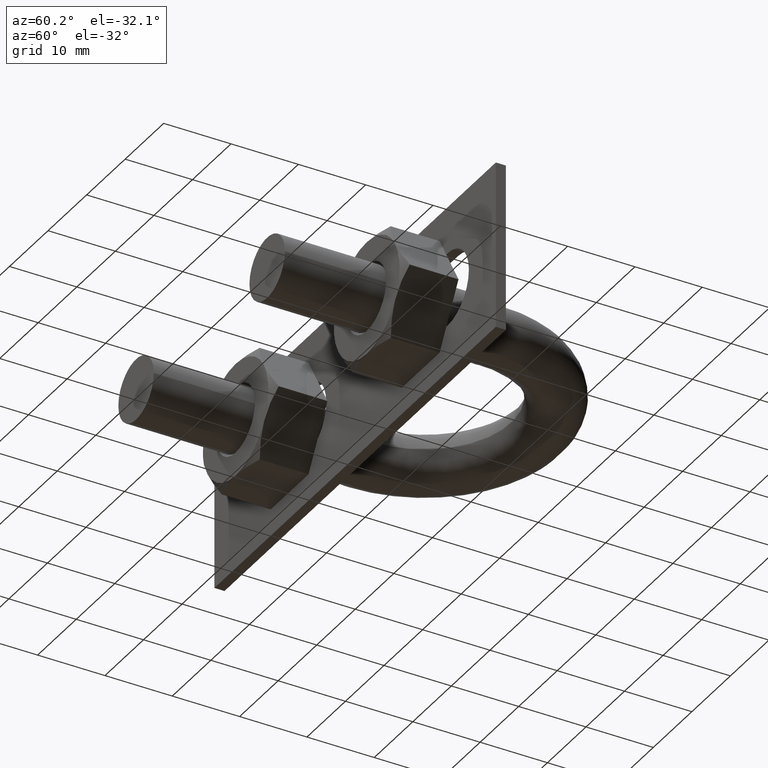
[diagram: clean part render]
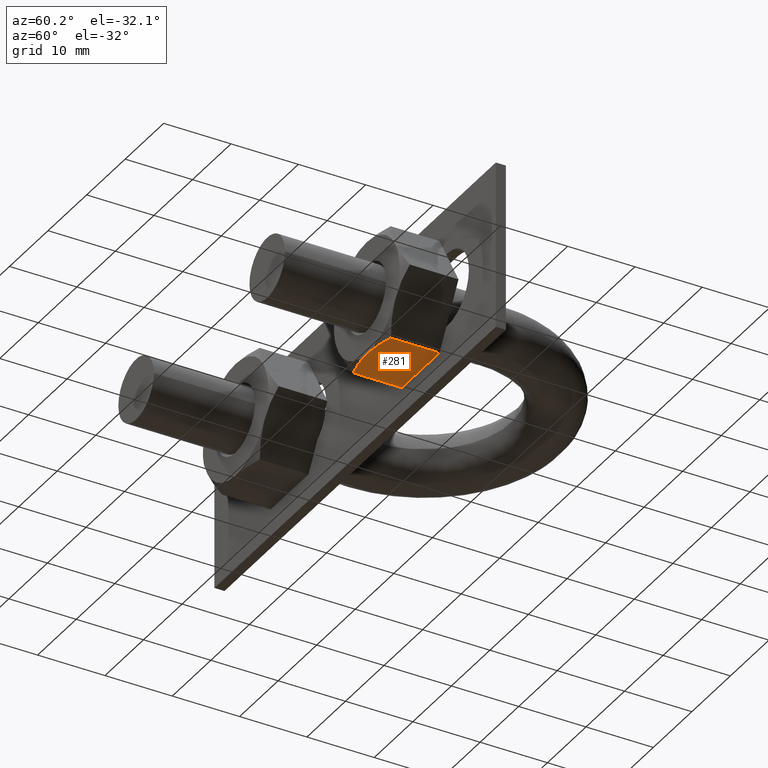
[diagram: same view with one face highlighted and labeled with its STEP entity id]
A machine part, auxiliary view. The second image highlights one B-rep face of the part: STEP entity #281.
In plain terms, the highlighted planar face has unit normal (-0, 0, 1).
Its self-contained STEP definition (entity closure, byte-faithful):
#281 = ADVANCED_FACE( '', ( #431 ), #432, .F. );
#431 = FACE_OUTER_BOUND( '', #751, .T. );
#432 = PLANE( '', #752 );
#751 = EDGE_LOOP( '', ( #1239, #1240, #1241, #1242, #1243 ) );
#752 = AXIS2_PLACEMENT_3D( '', #1244, #1245, #1246 );
#1239 = ORIENTED_EDGE( '', *, *, #1448, .F. );
#1240 = ORIENTED_EDGE( '', *, *, #1449, .F. );
#1241 = ORIENTED_EDGE( '', *, *, #1447, .F. );
#1242 = ORIENTED_EDGE( '', *, *, #1427, .F. );
#1243 = ORIENTED_EDGE( '', *, *, #1450, .F. );
#1244 = CARTESIAN_POINT( '', ( 21.9074772881109, -7.20000000000000, -8.50000000000000 ) );
#1245 = DIRECTION( '', ( -3.74915180455534E-033, 2.29561756065155E-049, 1.00000000000000 ) );
#1246 = DIRECTION( '', ( 6.12303176911189E-017, 1.00000000000000, 0.000000000000000 ) );
#1427 = EDGE_CURVE( '', #1675, #1677, #1678, .T. );
#1447 = EDGE_CURVE( '', #1677, #1705, #1707, .F. );
#1448 = EDGE_CURVE( '', #1645, #1708, #1709, .T. );
#1449 = EDGE_CURVE( '', #1705, #1645, #1710, .T. );
#1450 = EDGE_CURVE( '', #1708, #1675, #1711, .T. );
#1645 = VERTEX_POINT( '', #2057 );
#1675 = VERTEX_POINT( '', #2104 );
#1677 = VERTEX_POINT( '', #2106 );
#1678 = LINE( '', #2107, #2108 );
#1705 = VERTEX_POINT( '', #2173 );
#1707 = LINE( '', #2175, #2176 );
#1708 = VERTEX_POINT( '', #2177 );
#1709 = B_SPLINE_CURVE_WITH_KNOTS( '', 3, ( #2178, #2179, #2180, #2181, #2182, #2183 ), .UNSPECIFIED., .F., .F., ( 4, 2, 4 ), ( 0.0156840426092158, 0.0181633795370681, 0.0206427164649205 ), .UNSPECIFIED. );
#1710 = B_SPLINE_CURVE_WITH_KNOTS( '', 3, ( #2184, #2185, #2186, #2187, #2188, #2189 ), .UNSPECIFIED., .F., .F., ( 4, 2, 4 ), ( 0.0107224888714697, 0.0132032657403427, 0.0156840426092158 ), .UNSPECIFIED. );
#1711 = LINE( '', #2190, #2191 );
#2057 = CARTESIAN_POINT( '', ( 17.0000000000000, -15.1999999999985, -8.50000000000000 ) );
#2104 = CARTESIAN_POINT( '', ( 21.8774993593020, -7.20000000000000, -8.50000000000000 ) );
#2106 = CARTESIAN_POINT( '', ( 12.1225006406980, -7.20000000000000, -8.50000000000000 ) );
#2107 = CARTESIAN_POINT( '', ( 7.20000000000179, -7.20000000000000, -8.50000000000000 ) );
#2108 = VECTOR( '', #2429, 999.999999999939 );
#2173 = CARTESIAN_POINT( '', ( 12.1225006406980, -14.4494446500522, -8.50000000000000 ) );
#2175 = CARTESIAN_POINT( '', ( 12.1225006406980, -7.20000000000000, -8.50000000000000 ) );
#2176 = VECTOR( '', #2454, 999.999999999939 );
#2177 = CARTESIAN_POINT( '', ( 21.8774993593020, -14.4494446500522, -8.50000000000000 ) );
#2178 = CARTESIAN_POINT( '', ( 17.0000000000001, -15.1999999999979, -8.50000000000000 ) );
#2179 = CARTESIAN_POINT( '', ( 17.8345940408718, -15.1999999999979, -8.50000000000000 ) );
#2180 = CARTESIAN_POINT( '', ( 18.6590982732011, -15.1276895388717, -8.50000000000000 ) );
#2181 = CARTESIAN_POINT( '', ( 20.2828074229589, -14.8660056252248, -8.50000000000000 ) );
#2182 = CARTESIAN_POINT( '', ( 21.0838578122264, -14.6774971896888, -8.50000000000000 ) );
#2183 = CARTESIAN_POINT( '', ( 21.8774993593019, -14.4494446500517, -8.50000000000000 ) );
#2184 = CARTESIAN_POINT( '', ( 12.1225006406981, -14.4494446500517, -8.50000000000000 ) );
#2185 = CARTESIAN_POINT( '', ( 12.9171260670598, -14.6777799069567, -8.50000000000000 ) );
#2186 = CARTESIAN_POINT( '', ( 13.7187973776768, -14.8663452882808, -8.50000000000000 ) );
#2187 = CARTESIAN_POINT( '', ( 15.3426188305543, -15.1278850822163, -8.50000000000000 ) );
#2188 = CARTESIAN_POINT( '', ( 16.1649212463887, -15.1999999999979, -8.50000000000000 ) );
#2189 = CARTESIAN_POINT( '', ( 17.0000000000001, -15.1999999999979, -8.50000000000000 ) );
#2190 = CARTESIAN_POINT( '', ( 21.8774993593020, -7.20000000000000, -8.50000000000000 ) );
#2191 = VECTOR( '', #2455, 999.999999999939 );
#2429 = DIRECTION( '', ( -1.00000000000000, 6.12303176911189E-017, -3.74915180455534E-033 ) );
#2454 = DIRECTION( '', ( 6.12303176911189E-017, 1.00000000000000, 0.000000000000000 ) );
#2455 = DIRECTION( '', ( 6.12303176911189E-017, 1.00000000000000, 0.000000000000000 ) );